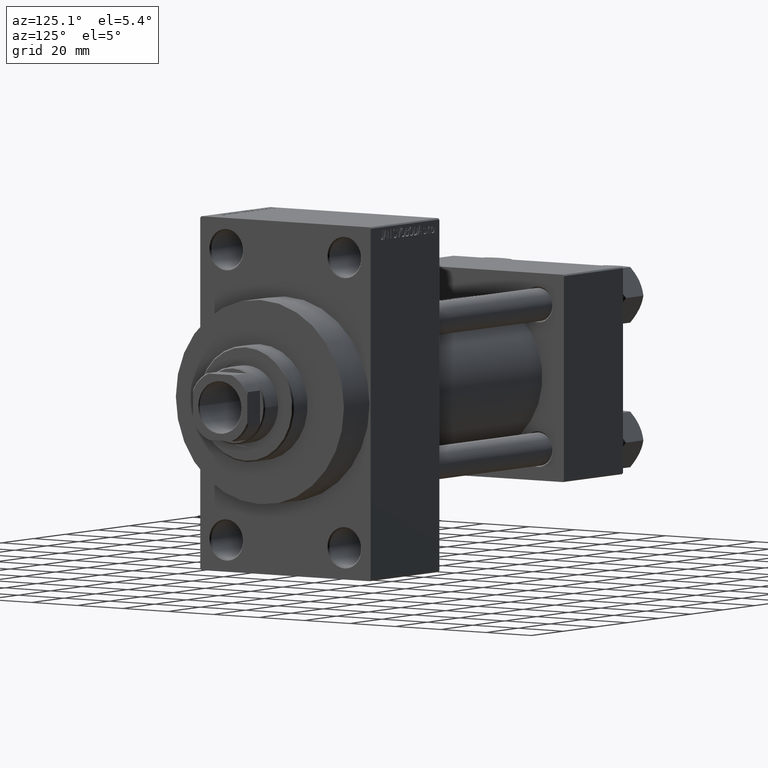
[diagram: clean part render]
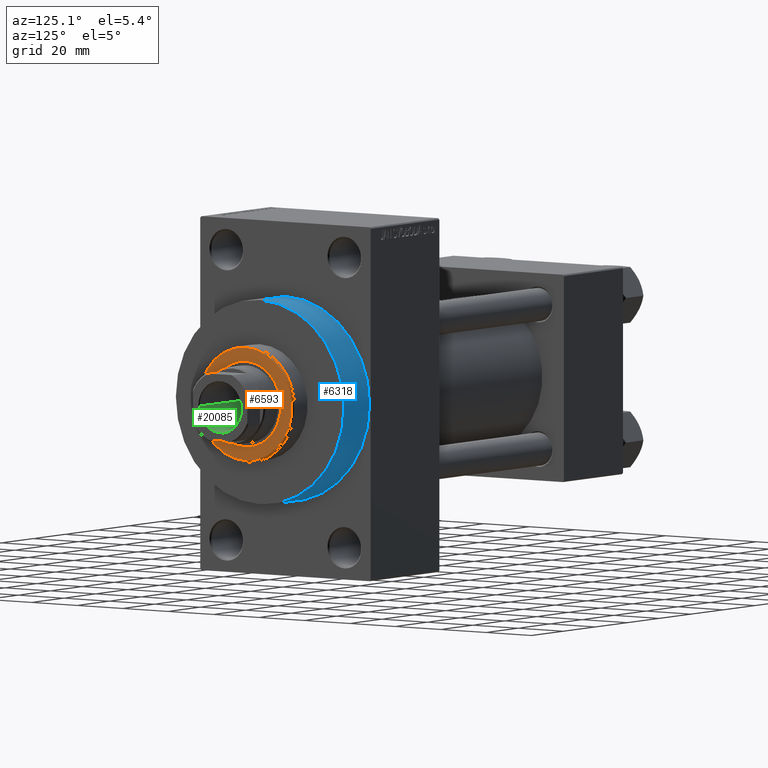
[diagram: same view with three faces highlighted in distinct colors, each labeled with its STEP entity id]
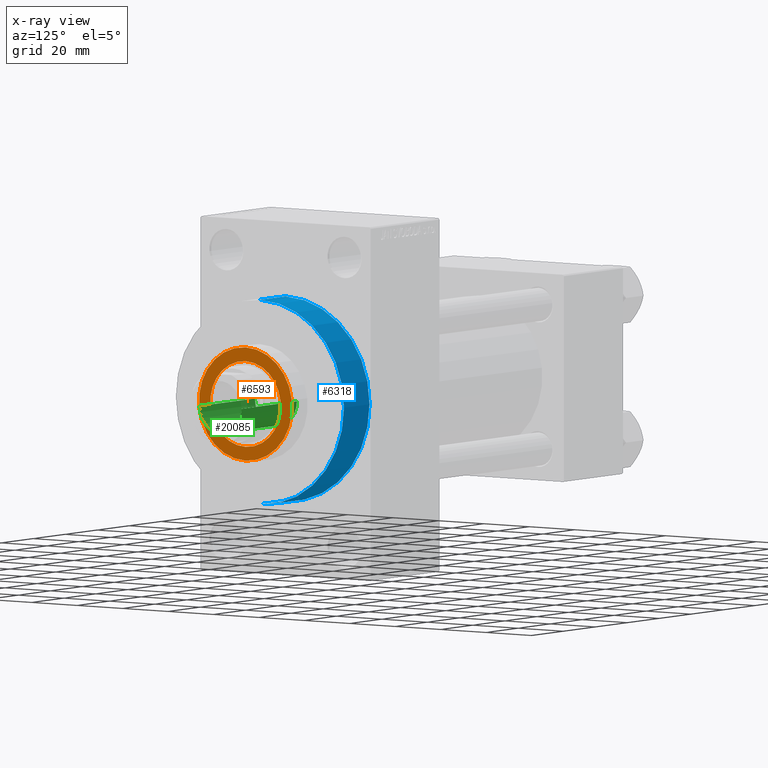
[diagram: x-ray of the same camera — body ghosted, the three highlighted faces saturated]
A machine part, auxiliary view with three faces highlighted in distinct colors.
The next image is the same camera in x-ray (body ghosted, the three faces saturated) — at least one of them is partly hidden behind the body in this view.
Their STEP definitions:

[orange] entity #6593 — the highlighted planar face has unit normal (1, -0, -0).
#1684 = VERTEX_POINT ( 'NONE', #11096 ) ;
#2193 = CARTESIAN_POINT ( 'NONE',  ( -20.50000000000000355, 0.000000000000000000, 52.25999999999999801 ) ) ;
#2264 = EDGE_CURVE ( 'NONE', #1684, #18361, #39862, .T. ) ;
#2317 = ORIENTED_EDGE ( 'NONE', *, *, #2264, .T. ) ;
#2793 = DIRECTION ( 'NONE',  ( 1.000000000000000000, 0.000000000000000000, 0.000000000000000000 ) ) ;
#3592 = AXIS2_PLACEMENT_3D ( 'NONE', #31138, #42848, #35615 ) ;
#3916 = CARTESIAN_POINT ( 'NONE',  ( 0.000000000000000000, 0.000000000000000000, 52.25999999999999801 ) ) ;
#6593 = ADVANCED_FACE ( 'NONE', ( #28844, #28343 ), #13144, .T. ) ;
#7272 = DIRECTION ( 'NONE',  ( 0.000000000000000000, 0.000000000000000000, 1.000000000000000000 ) ) ;
#7505 = EDGE_CURVE ( 'NONE', #11485, #28212, #30403, .T. ) ;
#8476 = CIRCLE ( 'NONE', #3592, 15.50000000000000000 ) ;
#8491 = AXIS2_PLACEMENT_3D ( 'NONE', #40409, #32680, #44396 ) ;
#9220 = ORIENTED_EDGE ( 'NONE', *, *, #7505, .F. ) ;
#11096 = CARTESIAN_POINT ( 'NONE',  ( 20.50000000000000355, 2.541142108230758269E-15, 52.25999999999999801 ) ) ;
#11157 = DIRECTION ( 'NONE',  ( 0.000000000000000000, 0.000000000000000000, 1.000000000000000000 ) ) ;
#11485 = VERTEX_POINT ( 'NONE', #38957 ) ;
#13144 = PLANE ( 'NONE',  #18403 ) ;
#14145 = EDGE_LOOP ( 'NONE', ( #24660, #9220 ) ) ;
#17749 = CARTESIAN_POINT ( 'NONE',  ( 0.000000000000000000, 0.000000000000000000, 52.25999999999999801 ) ) ;
#17865 = DIRECTION ( 'NONE',  ( 0.000000000000000000, 0.000000000000000000, 1.000000000000000000 ) ) ;
#18143 = DIRECTION ( 'NONE',  ( 1.000000000000000000, 0.000000000000000000, 0.000000000000000000 ) ) ;
#18315 = EDGE_CURVE ( 'NONE', #28212, #11485, #8476, .T. ) ;
#18361 = VERTEX_POINT ( 'NONE', #2193 ) ;
#18403 = AXIS2_PLACEMENT_3D ( 'NONE', #43553, #17865, #21096 ) ;
#20811 = AXIS2_PLACEMENT_3D ( 'NONE', #17749, #7272, #2793 ) ;
#21096 = DIRECTION ( 'NONE',  ( 1.000000000000000000, 0.000000000000000000, -0.000000000000000000 ) ) ;
#24660 = ORIENTED_EDGE ( 'NONE', *, *, #18315, .F. ) ;
#26765 = CIRCLE ( 'NONE', #8491, 20.50000000000000355 ) ;
#27164 = CARTESIAN_POINT ( 'NONE',  ( 15.50000000000000000, 0.000000000000000000, 52.25999999999999801 ) ) ;
#28212 = VERTEX_POINT ( 'NONE', #27164 ) ;
#28343 = FACE_OUTER_BOUND ( 'NONE', #38242, .T. ) ;
#28844 = FACE_BOUND ( 'NONE', #14145, .T. ) ;
#30403 = CIRCLE ( 'NONE', #20811, 15.50000000000000000 ) ;
#30585 = ORIENTED_EDGE ( 'NONE', *, *, #35827, .T. ) ;
#31138 = CARTESIAN_POINT ( 'NONE',  ( 0.000000000000000000, 0.000000000000000000, 52.25999999999999801 ) ) ;
#32680 = DIRECTION ( 'NONE',  ( 0.000000000000000000, 0.000000000000000000, 1.000000000000000000 ) ) ;
#35615 = DIRECTION ( 'NONE',  ( 1.000000000000000000, 0.000000000000000000, 0.000000000000000000 ) ) ;
#35827 = EDGE_CURVE ( 'NONE', #18361, #1684, #26765, .T. ) ;
#38242 = EDGE_LOOP ( 'NONE', ( #30585, #2317 ) ) ;
#38957 = CARTESIAN_POINT ( 'NONE',  ( -15.50000000000000000, 1.898202538678397557E-15, 52.25999999999999801 ) ) ;
#39862 = CIRCLE ( 'NONE', #46232, 20.50000000000000355 ) ;
#40409 = CARTESIAN_POINT ( 'NONE',  ( 0.000000000000000000, 0.000000000000000000, 52.25999999999999801 ) ) ;
#42848 = DIRECTION ( 'NONE',  ( 0.000000000000000000, 0.000000000000000000, 1.000000000000000000 ) ) ;
#43553 = CARTESIAN_POINT ( 'NONE',  ( 0.000000000000000000, 0.000000000000000000, 52.25999999999999801 ) ) ;
#44396 = DIRECTION ( 'NONE',  ( 1.000000000000000000, 0.000000000000000000, 0.000000000000000000 ) ) ;
#46232 = AXIS2_PLACEMENT_3D ( 'NONE', #3916, #11157, #18143 ) ;

[blue] entity #6318 — the highlighted cylindrical surface (partial cylindrical patch) has radius 37 mm, axis along (-1, -0, -0).
#860 = EDGE_CURVE ( 'NONE', #25440, #16008, #1517, .T. ) ;
#1517 = LINE ( 'NONE', #27930, #9578 ) ;
#2587 = ORIENTED_EDGE ( 'NONE', *, *, #38431, .T. ) ;
#2966 = EDGE_CURVE ( 'NONE', #21017, #19235, #30309, .T. ) ;
#3581 = FACE_OUTER_BOUND ( 'NONE', #9452, .T. ) ;
#3882 = DIRECTION ( 'NONE',  ( -1.000000000000000000, -0.000000000000000000, -0.000000000000000000 ) ) ;
#6318 = ADVANCED_FACE ( 'NONE', ( #3581 ), #15049, .T. ) ;
#6584 = DIRECTION ( 'NONE',  ( 0.000000000000000000, 0.000000000000000000, 1.000000000000000000 ) ) ;
#8572 = CARTESIAN_POINT ( 'NONE',  ( 174.0000000000000000, 0.000000000000000000, 37.00000000000000000 ) ) ;
#9452 = EDGE_LOOP ( 'NONE', ( #38694, #47840, #2587, #46345 ) ) ;
#9578 = VECTOR ( 'NONE', #43149, 1000.000000000000000 ) ;
#14057 = AXIS2_PLACEMENT_3D ( 'NONE', #39406, #36637, #43387 ) ;
#15049 = CYLINDRICAL_SURFACE ( 'NONE', #35906, 37.00000000000000000 ) ;
#15347 = CARTESIAN_POINT ( 'NONE',  ( 174.0000000000000000, 0.000000000000000000, 37.00000000000000000 ) ) ;
#16008 = VERTEX_POINT ( 'NONE', #28354 ) ;
#17558 = DIRECTION ( 'NONE',  ( 1.000000000000000000, 0.000000000000000000, 0.000000000000000000 ) ) ;
#19235 = VERTEX_POINT ( 'NONE', #23656 ) ;
#21017 = VERTEX_POINT ( 'NONE', #8572 ) ;
#21401 = EDGE_CURVE ( 'NONE', #25440, #21017, #47494, .T. ) ;
#23656 = CARTESIAN_POINT ( 'NONE',  ( 157.9999999999999716, 0.000000000000000000, 37.00000000000000000 ) ) ;
#25255 = CIRCLE ( 'NONE', #31654, 37.00000000000000000 ) ;
#25440 = VERTEX_POINT ( 'NONE', #48248 ) ;
#25752 = DIRECTION ( 'NONE',  ( -1.000000000000000000, -0.000000000000000000, -0.000000000000000000 ) ) ;
#27930 = CARTESIAN_POINT ( 'NONE',  ( 174.0000000000000000, 4.531193156845206793E-15, -37.00000000000000000 ) ) ;
#28354 = CARTESIAN_POINT ( 'NONE',  ( 157.9999999999999716, 4.531193156845206793E-15, -37.00000000000000000 ) ) ;
#30309 = LINE ( 'NONE', #15347, #31966 ) ;
#31654 = AXIS2_PLACEMENT_3D ( 'NONE', #36505, #17558, #32766 ) ;
#31966 = VECTOR ( 'NONE', #3882, 1000.000000000000000 ) ;
#32766 = DIRECTION ( 'NONE',  ( 0.000000000000000000, 0.000000000000000000, -1.000000000000000000 ) ) ;
#33002 = CARTESIAN_POINT ( 'NONE',  ( 174.0000000000000000, 0.000000000000000000, 0.000000000000000000 ) ) ;
#35906 = AXIS2_PLACEMENT_3D ( 'NONE', #33002, #25752, #6584 ) ;
#36505 = CARTESIAN_POINT ( 'NONE',  ( 157.9999999999999716, 0.000000000000000000, 0.000000000000000000 ) ) ;
#36637 = DIRECTION ( 'NONE',  ( 1.000000000000000000, 0.000000000000000000, 0.000000000000000000 ) ) ;
#38431 = EDGE_CURVE ( 'NONE', #16008, #19235, #25255, .T. ) ;
#38694 = ORIENTED_EDGE ( 'NONE', *, *, #21401, .F. ) ;
#39406 = CARTESIAN_POINT ( 'NONE',  ( 174.0000000000000000, 0.000000000000000000, 0.000000000000000000 ) ) ;
#43149 = DIRECTION ( 'NONE',  ( -1.000000000000000000, -0.000000000000000000, -0.000000000000000000 ) ) ;
#43387 = DIRECTION ( 'NONE',  ( 0.000000000000000000, 0.000000000000000000, -1.000000000000000000 ) ) ;
#46345 = ORIENTED_EDGE ( 'NONE', *, *, #2966, .F. ) ;
#47494 = CIRCLE ( 'NONE', #14057, 37.00000000000000000 ) ;
#47840 = ORIENTED_EDGE ( 'NONE', *, *, #860, .T. ) ;
#48248 = CARTESIAN_POINT ( 'NONE',  ( 174.0000000000000000, 4.531193156845206793E-15, -37.00000000000000000 ) ) ;

[green] entity #20085 — the highlighted cylindrical surface (edge-blend (fillet) strip) has radius 9.25 mm, axis along (1, 0, 0).
#1561 = FACE_OUTER_BOUND ( 'NONE', #39107, .T. ) ;
#2719 = DIRECTION ( 'NONE',  ( 0.000000000000000000, 0.000000000000000000, 1.000000000000000000 ) ) ;
#5795 = CYLINDRICAL_SURFACE ( 'NONE', #43438, 9.249999999999994671 ) ;
#6928 = AXIS2_PLACEMENT_3D ( 'NONE', #40108, #2719, #14191 ) ;
#7365 = LINE ( 'NONE', #21573, #40417 ) ;
#8599 = DIRECTION ( 'NONE',  ( -0.000000000000000000, -0.000000000000000000, 1.000000000000000000 ) ) ;
#8894 = CARTESIAN_POINT ( 'NONE',  ( -9.249999999999994671, 1.132798289211300909E-15, 161.7000000000000171 ) ) ;
#10088 = AXIS2_PLACEMENT_3D ( 'NONE', #29933, #22438, #41149 ) ;
#11348 = VERTEX_POINT ( 'NONE', #36249 ) ;
#14191 = DIRECTION ( 'NONE',  ( 1.000000000000000000, 0.000000000000000000, 0.000000000000000000 ) ) ;
#16773 = DIRECTION ( 'NONE',  ( -0.000000000000000000, -0.000000000000000000, 1.000000000000000000 ) ) ;
#20085 = ADVANCED_FACE ( 'NONE', ( #1561 ), #5795, .F. ) ;
#20478 = CARTESIAN_POINT ( 'NONE',  ( -9.249999999999992895, 1.132798289211300712E-15, 127.0000000000000000 ) ) ;
#20983 = DIRECTION ( 'NONE',  ( 1.000000000000000000, 0.000000000000000000, 0.000000000000000000 ) ) ;
#21573 = CARTESIAN_POINT ( 'NONE',  ( -9.249999999999994671, 1.132798289211300909E-15, 162.0000000000000000 ) ) ;
#22255 = ORIENTED_EDGE ( 'NONE', *, *, #35921, .F. ) ;
#22438 = DIRECTION ( 'NONE',  ( -0.000000000000000000, -0.000000000000000000, 1.000000000000000000 ) ) ;
#24171 = VERTEX_POINT ( 'NONE', #32113 ) ;
#25232 = CIRCLE ( 'NONE', #6928, 9.249999999999994671 ) ;
#25433 = EDGE_CURVE ( 'NONE', #31973, #26433, #7365, .T. ) ;
#26012 = VECTOR ( 'NONE', #8599, 1000.000000000000000 ) ;
#26433 = VERTEX_POINT ( 'NONE', #8894 ) ;
#29933 = CARTESIAN_POINT ( 'NONE',  ( 0.000000000000000000, 0.000000000000000000, 127.0000000000000000 ) ) ;
#31973 = VERTEX_POINT ( 'NONE', #20478 ) ;
#32113 = CARTESIAN_POINT ( 'NONE',  ( 9.249999999999994671, 0.000000000000000000, 161.7000000000000171 ) ) ;
#33539 = EDGE_CURVE ( 'NONE', #24171, #26433, #25232, .T. ) ;
#35272 = CARTESIAN_POINT ( 'NONE',  ( 9.249999999999994671, 0.000000000000000000, 162.0000000000000000 ) ) ;
#35921 = EDGE_CURVE ( 'NONE', #11348, #31973, #39517, .T. ) ;
#36249 = CARTESIAN_POINT ( 'NONE',  ( 9.249999999999992895, 0.000000000000000000, 127.0000000000000000 ) ) ;
#36553 = EDGE_CURVE ( 'NONE', #11348, #24171, #42498, .T. ) ;
#37758 = DIRECTION ( 'NONE',  ( -0.000000000000000000, -0.000000000000000000, 1.000000000000000000 ) ) ;
#39107 = EDGE_LOOP ( 'NONE', ( #39720, #22255, #46994, #43354 ) ) ;
#39517 = CIRCLE ( 'NONE', #10088, 9.249999999999992895 ) ;
#39720 = ORIENTED_EDGE ( 'NONE', *, *, #25433, .F. ) ;
#39946 = CARTESIAN_POINT ( 'NONE',  ( 0.000000000000000000, 0.000000000000000000, 162.0000000000000000 ) ) ;
#40108 = CARTESIAN_POINT ( 'NONE',  ( 0.000000000000000000, 0.000000000000000000, 161.7000000000000171 ) ) ;
#40417 = VECTOR ( 'NONE', #37758, 1000.000000000000000 ) ;
#41149 = DIRECTION ( 'NONE',  ( 1.000000000000000000, 0.000000000000000000, 0.000000000000000000 ) ) ;
#42498 = LINE ( 'NONE', #35272, #26012 ) ;
#43354 = ORIENTED_EDGE ( 'NONE', *, *, #33539, .T. ) ;
#43438 = AXIS2_PLACEMENT_3D ( 'NONE', #39946, #16773, #20983 ) ;
#46994 = ORIENTED_EDGE ( 'NONE', *, *, #36553, .T. ) ;